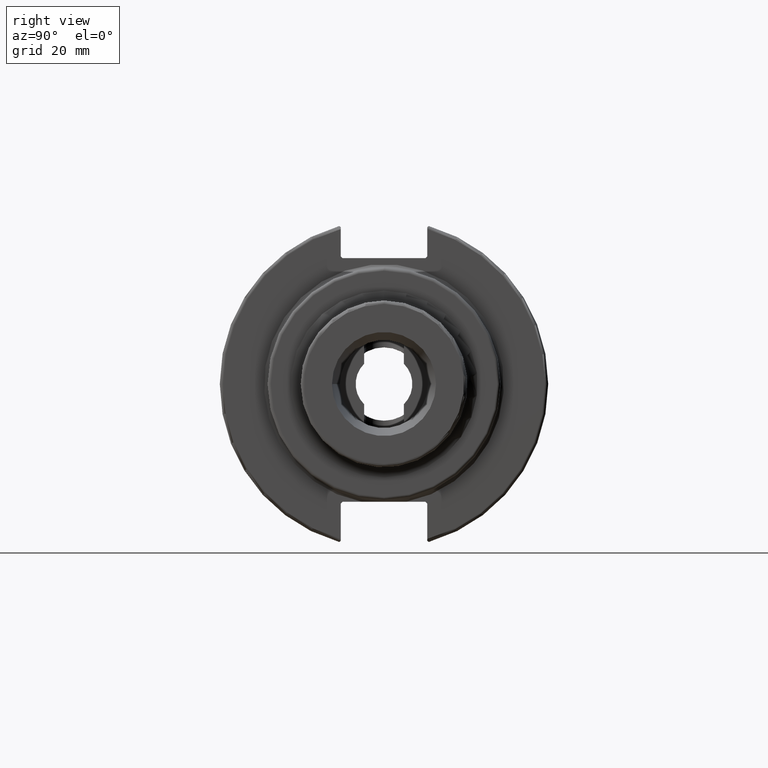
[diagram: clean part render]
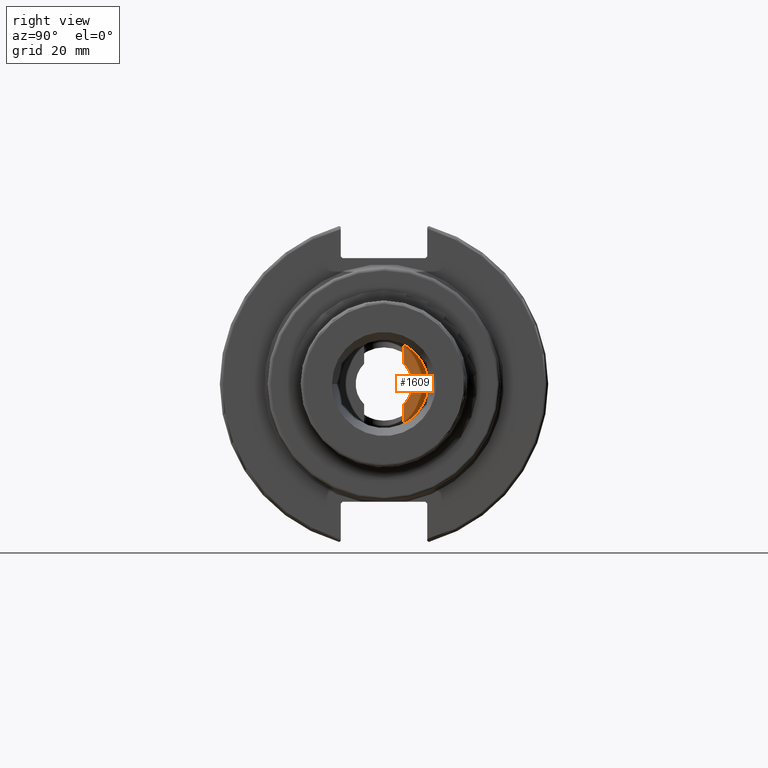
[diagram: same view with one face highlighted and labeled with its STEP entity id]
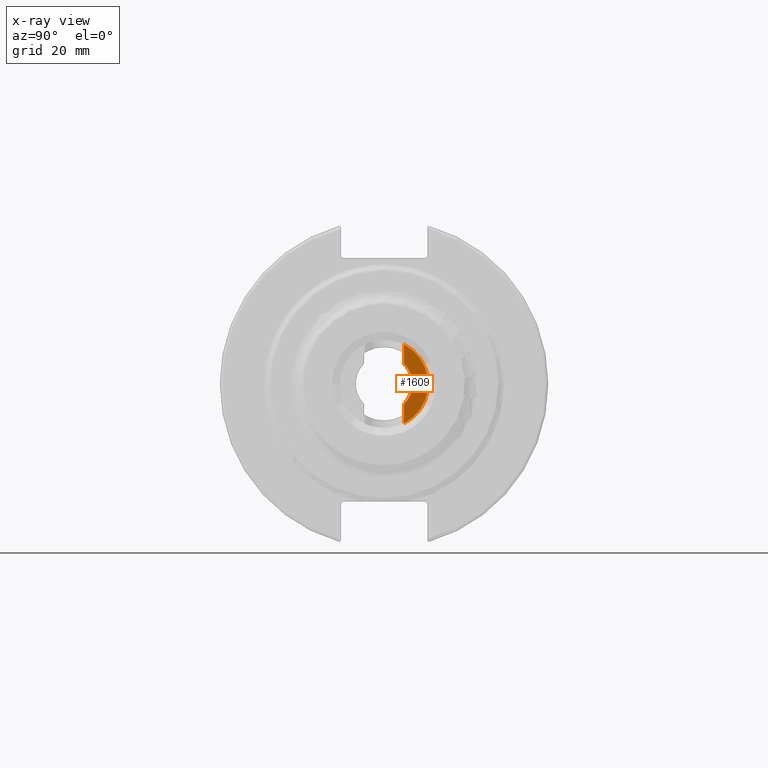
[diagram: x-ray of the same camera — body ghosted, the highlighted face saturated]
A machine part, right view. The second image highlights one B-rep face of the part: STEP entity #1609.
The next image is the same camera in x-ray: the body ghosted, the highlighted face saturated — about 0% of this face is hidden behind the body in this view.
In plain terms, the highlighted planar face has unit normal (-1, 0, 0).
Its self-contained STEP definition (entity closure, byte-faithful):
#45=CIRCLE('',#1709,8.5);
#64=CIRCLE('',#1737,13.25);
#155=PLANE('',#1738);
#223=FACE_OUTER_BOUND('',#318,.T.);
#318=EDGE_LOOP('',(#1282,#1283,#1284,#1285));
#446=LINE('',#2630,#555);
#461=LINE('',#3024,#570);
#555=VECTOR('',#1847,10.);
#570=VECTOR('',#1872,10.);
#672=VERTEX_POINT('',#2627);
#673=VERTEX_POINT('',#2629);
#698=VERTEX_POINT('',#3021);
#699=VERTEX_POINT('',#3023);
#845=EDGE_CURVE('',#673,#672,#446,.T.);
#881=EDGE_CURVE('',#699,#698,#461,.T.);
#903=EDGE_CURVE('',#698,#673,#45,.T.);
#927=EDGE_CURVE('',#699,#672,#64,.T.);
#1282=ORIENTED_EDGE('',*,*,#881,.T.);
#1283=ORIENTED_EDGE('',*,*,#903,.T.);
#1284=ORIENTED_EDGE('',*,*,#845,.T.);
#1285=ORIENTED_EDGE('',*,*,#927,.F.);
#1609=ADVANCED_FACE('',(#223),#155,.F.);
#1709=AXIS2_PLACEMENT_3D('',#3118,#1918,#1919);
#1737=AXIS2_PLACEMENT_3D('',#3177,#1977,#1978);
#1738=AXIS2_PLACEMENT_3D('',#3178,#1979,#1980);
#1847=DIRECTION('',(0.,0.,-1.));
#1872=DIRECTION('',(0.,0.,-1.));
#1918=DIRECTION('center_axis',(-1.,0.,0.));
#1919=DIRECTION('ref_axis',(0.,0.,1.));
#1977=DIRECTION('center_axis',(-1.,0.,0.));
#1978=DIRECTION('ref_axis',(0.,0.,1.));
#1979=DIRECTION('center_axis',(-1.,0.,0.));
#1980=DIRECTION('ref_axis',(0.,0.,1.));
#2627=CARTESIAN_POINT('',(-37.15,5.95,-11.838918869559));
#2629=CARTESIAN_POINT('',(-37.15,5.95,-6.07021416426142));
#2630=CARTESIAN_POINT('',(-37.15,5.95,0.));
#3021=CARTESIAN_POINT('',(-37.15,5.95,6.07021416426142));
#3023=CARTESIAN_POINT('',(-37.15,5.95,11.838918869559));
#3024=CARTESIAN_POINT('',(-37.15,5.95,0.));
#3118=CARTESIAN_POINT('Origin',(-37.15,0.,0.));
#3177=CARTESIAN_POINT('Origin',(-37.15,0.,0.));
#3178=CARTESIAN_POINT('Origin',(-37.15,-8.88178419700125E-15,0.));